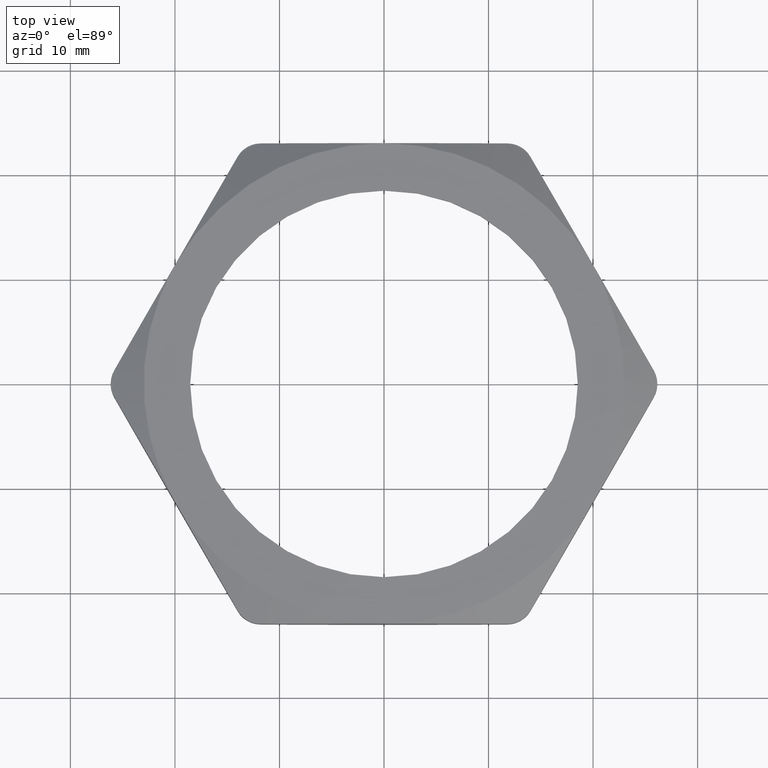
[diagram: clean part render]
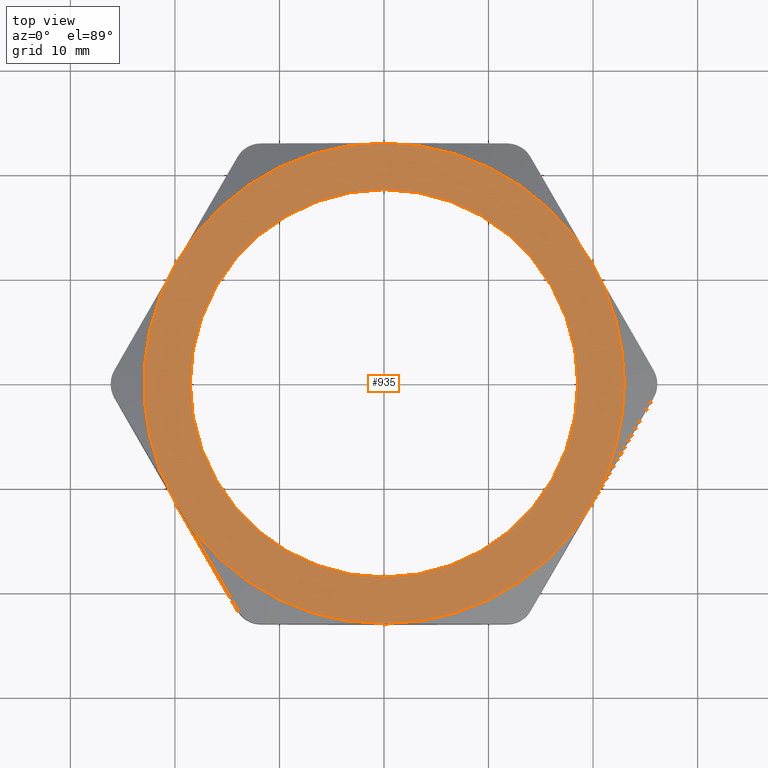
[diagram: same view with one face highlighted and labeled with its STEP entity id]
A machine part, top view. The second image highlights one B-rep face of the part: STEP entity #935.
In plain terms, the highlighted planar face has unit normal (0, 0, -1).
Its self-contained STEP definition (entity closure, byte-faithful):
#364 = CARTESIAN_POINT ( 'NONE',  ( 0.7299999999999999800, 9.062386313690414600E-017, 0.2700000000000000200 ) ) ;
#365 = CARTESIAN_POINT ( 'NONE',  ( -0.7299999999999999800, 0.0000000000000000000, 0.2700000000000000200 ) ) ;
#366 = DIRECTION ( 'NONE',  ( 1.000000000000000000, 0.0000000000000000000, 0.0000000000000000000 ) ) ;
#367 = DIRECTION ( 'NONE',  ( 0.0000000000000000000, 0.0000000000000000000, 1.000000000000000000 ) ) ;
#368 = CARTESIAN_POINT ( 'NONE',  ( 0.0000000000000000000, 0.0000000000000000000, 0.2700000000000000200 ) ) ;
#369 = AXIS2_PLACEMENT_3D ( 'NONE', #368, #367, #366 ) ;
#370 = CIRCLE ( 'NONE', #369, 0.7299999999999999800 ) ;
#417 = CARTESIAN_POINT ( 'NONE',  ( 0.7837529904249174200, 0.4525000000000001800, 0.2700000000000000200 ) ) ;
#418 = CARTESIAN_POINT ( 'NONE',  ( 0.9049999999999999200, 0.0000000000000000000, 0.2700000000000000200 ) ) ;
#419 = DIRECTION ( 'NONE',  ( 1.000000000000000000, 0.0000000000000000000, 0.0000000000000000000 ) ) ;
#420 = DIRECTION ( 'NONE',  ( 0.0000000000000000000, 0.0000000000000000000, 1.000000000000000000 ) ) ;
#421 = CARTESIAN_POINT ( 'NONE',  ( 0.0000000000000000000, 0.0000000000000000000, 0.2700000000000000200 ) ) ;
#422 = AXIS2_PLACEMENT_3D ( 'NONE', #421, #420, #419 ) ;
#425 = CIRCLE ( 'NONE', #422, 0.9050000000000000300 ) ;
#492 = CARTESIAN_POINT ( 'NONE',  ( -0.7837529904249173100, -0.4524999999999997900, 0.2700000000000000200 ) ) ;
#705 = EDGE_CURVE ( 'NONE', #815, #2695, #1046, .T. ) ;
#706 = ORIENTED_EDGE ( 'NONE', *, *, #707, .T. ) ;
#707 = EDGE_CURVE ( 'NONE', #2695, #824, #1071, .T. ) ;
#708 = ORIENTED_EDGE ( 'NONE', *, *, #709, .T. ) ;
#709 = EDGE_CURVE ( 'NONE', #824, #793, #1016, .T. ) ;
#793 = VERTEX_POINT ( 'NONE', #1339 ) ;
#815 = VERTEX_POINT ( 'NONE', #1344 ) ;
#824 = VERTEX_POINT ( 'NONE', #1420 ) ;
#838 = ORIENTED_EDGE ( 'NONE', *, *, #839, .T. ) ;
#839 = EDGE_CURVE ( 'NONE', #793, #2673, #1386, .T. ) ;
#935 = ADVANCED_FACE ( 'NONE', ( #1523, #1521 ), #1511, .F. ) ;
#936 = EDGE_LOOP ( 'NONE', ( #937, #967 ) ) ;
#937 = ORIENTED_EDGE ( 'NONE', *, *, #2643, .F. ) ;
#938 = ORIENTED_EDGE ( 'NONE', *, *, #2672, .T. ) ;
#939 = ORIENTED_EDGE ( 'NONE', *, *, #940, .T. ) ;
#940 = EDGE_CURVE ( 'NONE', #2674, #975, #1506, .T. ) ;
#967 = ORIENTED_EDGE ( 'NONE', *, *, #968, .F. ) ;
#968 = EDGE_CURVE ( 'NONE', #2645, #2644, #1584, .T. ) ;
#969 = EDGE_LOOP ( 'NONE', ( #970, #972, #706, #708, #838, #938, #939 ) ) ;
#970 = ORIENTED_EDGE ( 'NONE', *, *, #971, .T. ) ;
#971 = EDGE_CURVE ( 'NONE', #975, #815, #1567, .T. ) ;
#972 = ORIENTED_EDGE ( 'NONE', *, *, #705, .T. ) ;
#975 = VERTEX_POINT ( 'NONE', #1702 ) ;
#983 = CARTESIAN_POINT ( 'NONE',  ( 0.0000000000000000000, 0.0000000000000000000, 0.2700000000000000200 ) ) ;
#991 = DIRECTION ( 'NONE',  ( 0.0000000000000000000, 0.0000000000000000000, 1.000000000000000000 ) ) ;
#992 = AXIS2_PLACEMENT_3D ( 'NONE', #983, #991, #993 ) ;
#993 = DIRECTION ( 'NONE',  ( 1.000000000000000000, 0.0000000000000000000, 0.0000000000000000000 ) ) ;
#1013 = DIRECTION ( 'NONE',  ( 1.000000000000000000, 0.0000000000000000000, 0.0000000000000000000 ) ) ;
#1014 = DIRECTION ( 'NONE',  ( 0.0000000000000000000, 0.0000000000000000000, 1.000000000000000000 ) ) ;
#1015 = AXIS2_PLACEMENT_3D ( 'NONE', #1072, #1014, #1013 ) ;
#1016 = CIRCLE ( 'NONE', #1015, 0.9050000000000000300 ) ;
#1042 = DIRECTION ( 'NONE',  ( 1.000000000000000000, 0.0000000000000000000, 0.0000000000000000000 ) ) ;
#1043 = DIRECTION ( 'NONE',  ( 0.0000000000000000000, 0.0000000000000000000, 1.000000000000000000 ) ) ;
#1044 = CARTESIAN_POINT ( 'NONE',  ( 0.0000000000000000000, 0.0000000000000000000, 0.2700000000000000200 ) ) ;
#1045 = AXIS2_PLACEMENT_3D ( 'NONE', #1044, #1043, #1042 ) ;
#1046 = CIRCLE ( 'NONE', #1045, 0.9050000000000000300 ) ;
#1070 = CARTESIAN_POINT ( 'NONE',  ( 0.0000000000000000000, 0.0000000000000000000, 0.2700000000000000200 ) ) ;
#1071 = CIRCLE ( 'NONE', #1075, 0.9050000000000000300 ) ;
#1072 = CARTESIAN_POINT ( 'NONE',  ( 0.0000000000000000000, 0.0000000000000000000, 0.2700000000000000200 ) ) ;
#1073 = DIRECTION ( 'NONE',  ( 1.000000000000000000, 0.0000000000000000000, 0.0000000000000000000 ) ) ;
#1074 = DIRECTION ( 'NONE',  ( 0.0000000000000000000, 0.0000000000000000000, 1.000000000000000000 ) ) ;
#1075 = AXIS2_PLACEMENT_3D ( 'NONE', #1070, #1074, #1073 ) ;
#1339 = CARTESIAN_POINT ( 'NONE',  ( 0.7837529904249167500, -0.4524999999999999600, 0.2700000000000000200 ) ) ;
#1344 = CARTESIAN_POINT ( 'NONE',  ( -0.7837529904249172000, 0.4525000000000003500, 0.2700000000000000200 ) ) ;
#1363 = DIRECTION ( 'NONE',  ( 1.000000000000000000, 0.0000000000000000000, 0.0000000000000000000 ) ) ;
#1364 = DIRECTION ( 'NONE',  ( 0.0000000000000000000, 0.0000000000000000000, 1.000000000000000000 ) ) ;
#1365 = CARTESIAN_POINT ( 'NONE',  ( 0.0000000000000000000, 0.0000000000000000000, 0.2700000000000000200 ) ) ;
#1385 = AXIS2_PLACEMENT_3D ( 'NONE', #1365, #1364, #1363 ) ;
#1386 = CIRCLE ( 'NONE', #1385, 0.9050000000000000300 ) ;
#1420 = CARTESIAN_POINT ( 'NONE',  ( 1.182924880895400500E-016, -0.9049999999999998000, 0.2700000000000000200 ) ) ;
#1506 = CIRCLE ( 'NONE', #992, 0.9050000000000000300 ) ;
#1507 = DIRECTION ( 'NONE',  ( -1.000000000000000000, 0.0000000000000000000, 0.0000000000000000000 ) ) ;
#1508 = DIRECTION ( 'NONE',  ( 0.0000000000000000000, 0.0000000000000000000, -1.000000000000000000 ) ) ;
#1509 = CARTESIAN_POINT ( 'NONE',  ( 1.365923996832131600E-016, 1.810000000000001200, 0.2700000000000000200 ) ) ;
#1510 = AXIS2_PLACEMENT_3D ( 'NONE', #1509, #1508, #1507 ) ;
#1511 = PLANE ( 'NONE',  #1510 ) ;
#1521 = FACE_OUTER_BOUND ( 'NONE', #969, .T. ) ;
#1523 = FACE_BOUND ( 'NONE', #936, .T. ) ;
#1564 = DIRECTION ( 'NONE',  ( 0.0000000000000000000, 0.0000000000000000000, 1.000000000000000000 ) ) ;
#1565 = CARTESIAN_POINT ( 'NONE',  ( 0.0000000000000000000, 0.0000000000000000000, 0.2700000000000000200 ) ) ;
#1566 = AXIS2_PLACEMENT_3D ( 'NONE', #1565, #1564, #1704 ) ;
#1567 = CIRCLE ( 'NONE', #1566, 0.9050000000000000300 ) ;
#1568 = DIRECTION ( 'NONE',  ( 1.000000000000000000, 0.0000000000000000000, 0.0000000000000000000 ) ) ;
#1582 = DIRECTION ( 'NONE',  ( 0.0000000000000000000, 0.0000000000000000000, 1.000000000000000000 ) ) ;
#1583 = AXIS2_PLACEMENT_3D ( 'NONE', #1721, #1582, #1568 ) ;
#1584 = CIRCLE ( 'NONE', #1583, 0.7299999999999999800 ) ;
#1702 = CARTESIAN_POINT ( 'NONE',  ( 1.182924880895400800E-016, 0.9050000000000001400, 0.2700000000000000200 ) ) ;
#1704 = DIRECTION ( 'NONE',  ( 1.000000000000000000, 0.0000000000000000000, 0.0000000000000000000 ) ) ;
#1721 = CARTESIAN_POINT ( 'NONE',  ( 0.0000000000000000000, 0.0000000000000000000, 0.2700000000000000200 ) ) ;
#2643 = EDGE_CURVE ( 'NONE', #2644, #2645, #370, .T. ) ;
#2644 = VERTEX_POINT ( 'NONE', #365 ) ;
#2645 = VERTEX_POINT ( 'NONE', #364 ) ;
#2672 = EDGE_CURVE ( 'NONE', #2673, #2674, #425, .T. ) ;
#2673 = VERTEX_POINT ( 'NONE', #418 ) ;
#2674 = VERTEX_POINT ( 'NONE', #417 ) ;
#2695 = VERTEX_POINT ( 'NONE', #492 ) ;